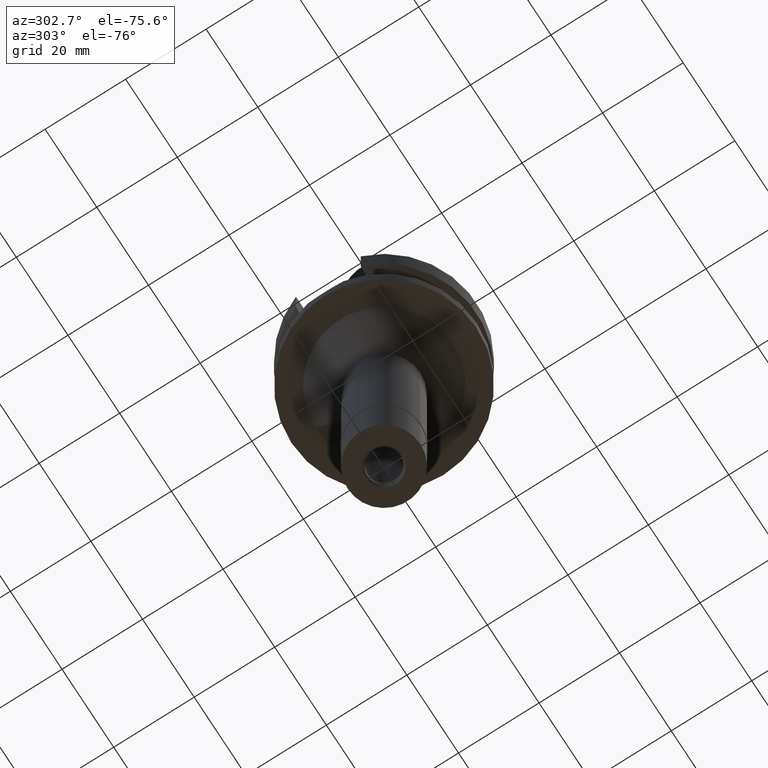
[diagram: clean part render]
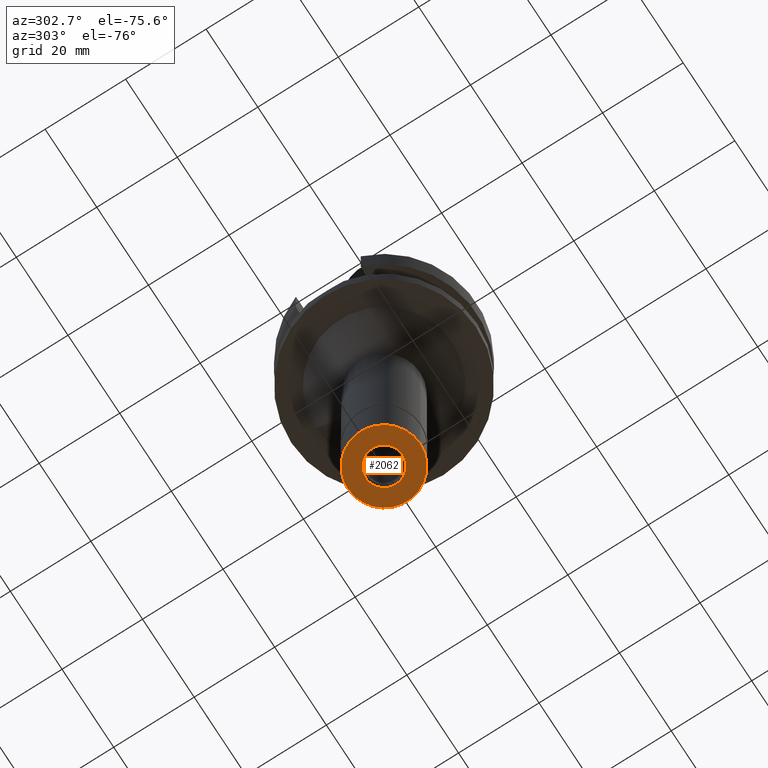
[diagram: same view with one face highlighted and labeled with its STEP entity id]
A machine part, auxiliary view. The second image highlights one B-rep face of the part: STEP entity #2062.
In plain terms, the highlighted planar face has unit normal (0, 0, 1).
Its self-contained STEP definition (entity closure, byte-faithful):
#59 = CIRCLE ( 'NONE', #1538, 4.599999999999999645 ) ;
#68 = AXIS2_PLACEMENT_3D ( 'NONE', #165, #2131, #1509 ) ;
#80 = EDGE_CURVE ( 'NONE', #1288, #2560, #1331, .T. ) ;
#117 = VERTEX_POINT ( 'NONE', #2185 ) ;
#165 = CARTESIAN_POINT ( 'NONE',  ( 0.0000000000000000000, 0.0000000000000000000, -18.50000000000000000 ) ) ;
#169 = ORIENTED_EDGE ( 'NONE', *, *, #80, .F. ) ;
#191 = PLANE ( 'NONE',  #878 ) ;
#299 = EDGE_LOOP ( 'NONE', ( #798, #528 ) ) ;
#528 = ORIENTED_EDGE ( 'NONE', *, *, #1724, .F. ) ;
#798 = ORIENTED_EDGE ( 'NONE', *, *, #2690, .F. ) ;
#801 = CARTESIAN_POINT ( 'NONE',  ( 0.0000000000000000000, 0.0000000000000000000, -18.50000000000000000 ) ) ;
#849 = CARTESIAN_POINT ( 'NONE',  ( 0.0000000000000000000, 0.0000000000000000000, -18.50000000000000000 ) ) ;
#878 = AXIS2_PLACEMENT_3D ( 'NONE', #849, #1843, #2310 ) ;
#894 = CARTESIAN_POINT ( 'NONE',  ( 0.0000000000000000000, 9.000000000000000000, -18.50000000000000000 ) ) ;
#915 = AXIS2_PLACEMENT_3D ( 'NONE', #801, #1436, #2342 ) ;
#1058 = CARTESIAN_POINT ( 'NONE',  ( 0.0000000000000000000, 0.0000000000000000000, -18.50000000000000000 ) ) ;
#1288 = VERTEX_POINT ( 'NONE', #2304 ) ;
#1331 = CIRCLE ( 'NONE', #68, 9.000000000000000000 ) ;
#1351 = CARTESIAN_POINT ( 'NONE',  ( 0.0000000000000000000, 0.0000000000000000000, -18.50000000000000000 ) ) ;
#1357 = ORIENTED_EDGE ( 'NONE', *, *, #2140, .F. ) ;
#1366 = DIRECTION ( 'NONE',  ( 0.0000000000000000000, -1.000000000000000000, 0.0000000000000000000 ) ) ;
#1436 = DIRECTION ( 'NONE',  ( 0.0000000000000000000, 0.0000000000000000000, -1.000000000000000000 ) ) ;
#1491 = CIRCLE ( 'NONE', #915, 4.599999999999999645 ) ;
#1509 = DIRECTION ( 'NONE',  ( 0.0000000000000000000, -1.000000000000000000, 0.0000000000000000000 ) ) ;
#1538 = AXIS2_PLACEMENT_3D ( 'NONE', #1351, #1812, #1366 ) ;
#1584 = AXIS2_PLACEMENT_3D ( 'NONE', #1058, #2422, #2858 ) ;
#1724 = EDGE_CURVE ( 'NONE', #117, #1753, #59, .T. ) ;
#1753 = VERTEX_POINT ( 'NONE', #2709 ) ;
#1800 = FACE_BOUND ( 'NONE', #299, .T. ) ;
#1812 = DIRECTION ( 'NONE',  ( 0.0000000000000000000, 0.0000000000000000000, -1.000000000000000000 ) ) ;
#1843 = DIRECTION ( 'NONE',  ( 0.0000000000000000000, 0.0000000000000000000, 1.000000000000000000 ) ) ;
#2062 = ADVANCED_FACE ( 'NONE', ( #2145, #1800 ), #191, .F. ) ;
#2131 = DIRECTION ( 'NONE',  ( 0.0000000000000000000, 0.0000000000000000000, 1.000000000000000000 ) ) ;
#2140 = EDGE_CURVE ( 'NONE', #2560, #1288, #2148, .T. ) ;
#2145 = FACE_OUTER_BOUND ( 'NONE', #2849, .T. ) ;
#2148 = CIRCLE ( 'NONE', #1584, 9.000000000000000000 ) ;
#2185 = CARTESIAN_POINT ( 'NONE',  ( 0.0000000000000000000, -4.599999999999999645, -18.50000000000000000 ) ) ;
#2304 = CARTESIAN_POINT ( 'NONE',  ( 0.0000000000000000000, -9.000000000000000000, -18.50000000000000000 ) ) ;
#2310 = DIRECTION ( 'NONE',  ( 1.000000000000000000, 0.0000000000000000000, 0.0000000000000000000 ) ) ;
#2342 = DIRECTION ( 'NONE',  ( 0.0000000000000000000, 1.000000000000000000, 0.0000000000000000000 ) ) ;
#2422 = DIRECTION ( 'NONE',  ( 0.0000000000000000000, 0.0000000000000000000, 1.000000000000000000 ) ) ;
#2560 = VERTEX_POINT ( 'NONE', #894 ) ;
#2690 = EDGE_CURVE ( 'NONE', #1753, #117, #1491, .T. ) ;
#2709 = CARTESIAN_POINT ( 'NONE',  ( 0.0000000000000000000, 4.599999999999999645, -18.50000000000000000 ) ) ;
#2849 = EDGE_LOOP ( 'NONE', ( #1357, #169 ) ) ;
#2858 = DIRECTION ( 'NONE',  ( 0.0000000000000000000, 1.000000000000000000, 0.0000000000000000000 ) ) ;